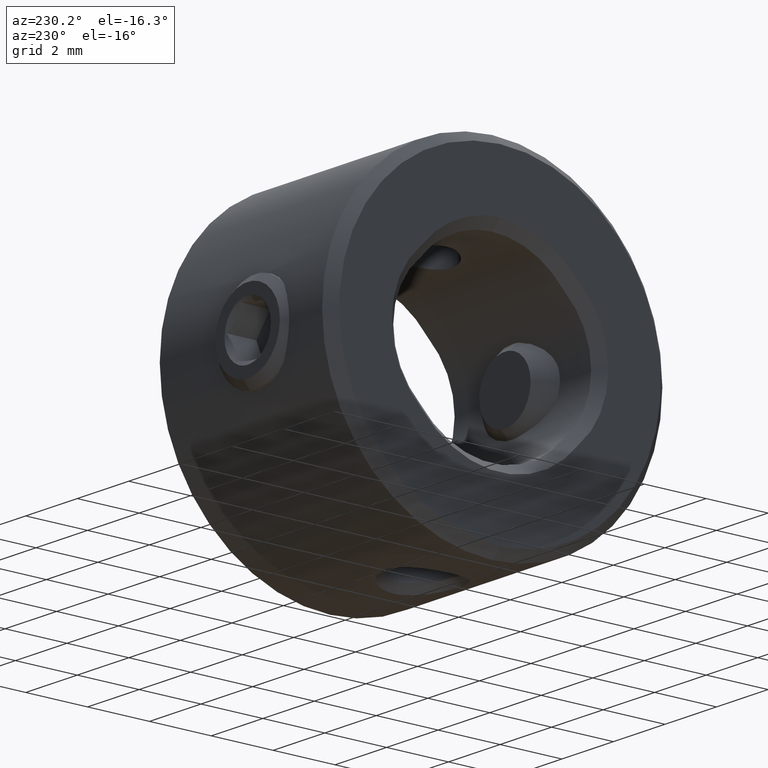
[diagram: clean part render]
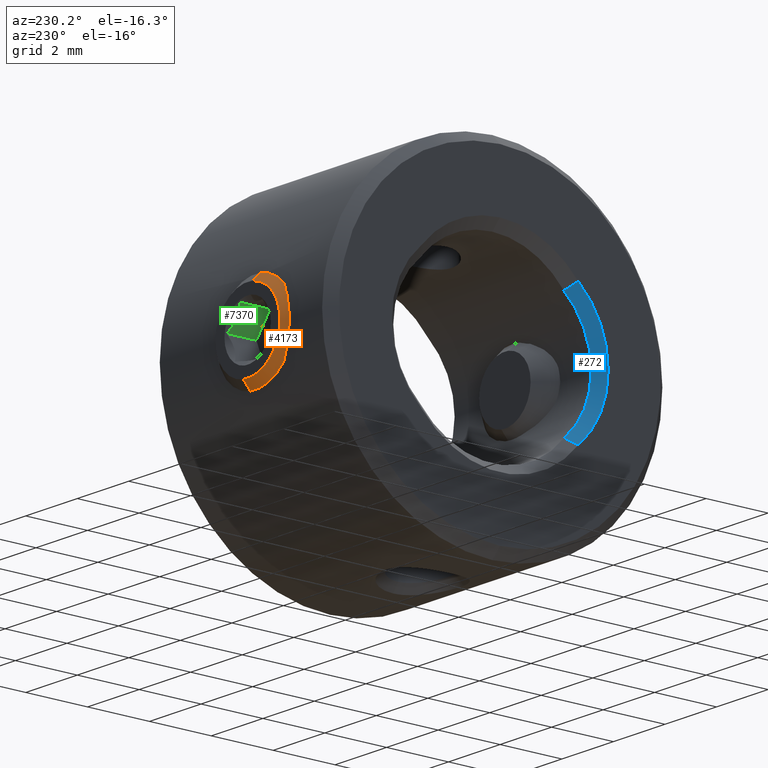
[diagram: same view with three faces highlighted in distinct colors, each labeled with its STEP entity id]
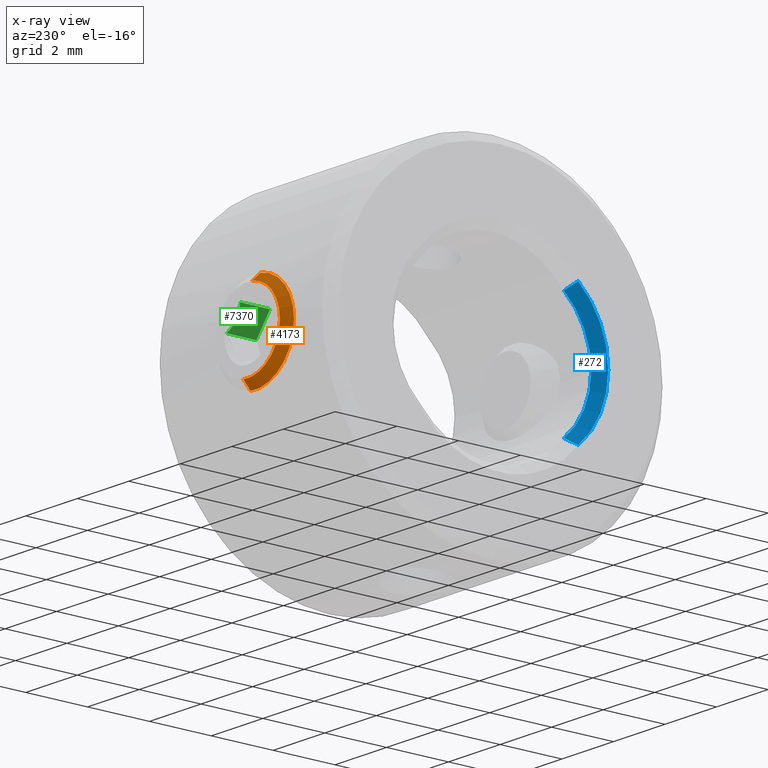
[diagram: x-ray of the same camera — body ghosted, the three highlighted faces saturated]
A machine part, auxiliary view with three faces highlighted in distinct colors.
The next image is the same camera in x-ray (body ghosted, the three faces saturated) — at least one of them is partly hidden behind the body in this view.
Their STEP definitions:

[orange] entity #4173 — the highlighted conical surface has half-angle 45 deg.
#32 = CARTESIAN_POINT ( 'NONE',  ( 2.802927664577335776, 5.407278291523189395, 1.486997812577814271 ) ) ;
#144 = DIRECTION ( 'NONE',  ( -0.1313815569484383383, 0.000000000000000000, 0.9913318750518437250 ) ) ;
#166 = AXIS2_PLACEMENT_3D ( 'NONE', #7717, #7025, #144 ) ;
#698 = EDGE_CURVE ( 'NONE', #4863, #7334, #1513, .T. ) ;
#1513 = LINE ( 'NONE', #5260, #4674 ) ;
#1697 = CARTESIAN_POINT ( 'NONE',  ( 2.999999999999999556, 5.657278291523188507, -1.490777987167568597E-16 ) ) ;
#1835 = CARTESIAN_POINT ( 'NONE',  ( 3.164226946185553224, 5.657278291523188507, -1.239164843814845929 ) ) ;
#2280 = VECTOR ( 'NONE', #5171, 999.9999999999998863 ) ;
#2322 = DIRECTION ( 'NONE',  ( -0.1313815569484384216, 0.000000000000000000, 0.9913318750518436140 ) ) ;
#2472 = CARTESIAN_POINT ( 'NONE',  ( 3.197072335422663780, 5.407278291523189395, -1.486997812577814493 ) ) ;
#2725 = EDGE_CURVE ( 'NONE', #5819, #4863, #4830, .T. ) ;
#3081 = ORIENTED_EDGE ( 'NONE', *, *, #4033, .F. ) ;
#3340 = FACE_OUTER_BOUND ( 'NONE', #6691, .T. ) ;
#3732 = ORIENTED_EDGE ( 'NONE', *, *, #698, .F. ) ;
#3833 = VERTEX_POINT ( 'NONE', #2472 ) ;
#3847 = AXIS2_PLACEMENT_3D ( 'NONE', #1697, #4862, #2322 ) ;
#4033 = EDGE_CURVE ( 'NONE', #7334, #3833, #7615, .T. ) ;
#4172 = DIRECTION ( 'NONE',  ( -0.09290078984108889049, -0.7071067811865355823, 0.7009774912555457593 ) ) ;
#4173 = ADVANCED_FACE ( 'NONE', ( #3340 ), #6836, .T. ) ;
#4306 = EDGE_CURVE ( 'NONE', #5819, #3833, #7344, .T. ) ;
#4674 = VECTOR ( 'NONE', #4172, 999.9999999999998863 ) ;
#4830 = CIRCLE ( 'NONE', #3847, 1.250000000000041522 ) ;
#4862 = DIRECTION ( 'NONE',  ( 0.000000000000000000, 1.000000000000000000, 0.000000000000000000 ) ) ;
#4863 = VERTEX_POINT ( 'NONE', #7426 ) ;
#5171 = DIRECTION ( 'NONE',  ( 0.09290078984108895988, -0.7071067811865355823, -0.7009774912555457593 ) ) ;
#5260 = CARTESIAN_POINT ( 'NONE',  ( 2.835773053814446332, 5.657278291523188507, 1.239164843814845485 ) ) ;
#5279 = CARTESIAN_POINT ( 'NONE',  ( 2.999999999999999556, 5.657278291523188507, -1.490777987167568597E-16 ) ) ;
#5379 = DIRECTION ( 'NONE',  ( 0.1313815569484384216, 0.000000000000000000, -0.9913318750518436140 ) ) ;
#5424 = AXIS2_PLACEMENT_3D ( 'NONE', #5279, #7196, #5379 ) ;
#5548 = ORIENTED_EDGE ( 'NONE', *, *, #2725, .F. ) ;
#5819 = VERTEX_POINT ( 'NONE', #1835 ) ;
#6691 = EDGE_LOOP ( 'NONE', ( #3732, #5548, #7514, #3081 ) ) ;
#6836 = CONICAL_SURFACE ( 'NONE', #5424, 1.250000000000041522, 0.7853981633974488341 ) ;
#7025 = DIRECTION ( 'NONE',  ( -0.000000000000000000, -1.000000000000000000, -0.000000000000000000 ) ) ;
#7032 = CARTESIAN_POINT ( 'NONE',  ( 3.164226946185553224, 5.657278291523188507, -1.239164843814845929 ) ) ;
#7196 = DIRECTION ( 'NONE',  ( 0.000000000000000000, -1.000000000000000000, 0.000000000000000000 ) ) ;
#7334 = VERTEX_POINT ( 'NONE', #32 ) ;
#7344 = LINE ( 'NONE', #7032, #2280 ) ;
#7426 = CARTESIAN_POINT ( 'NONE',  ( 2.835773053814446332, 5.657278291523188507, 1.239164843814845485 ) ) ;
#7514 = ORIENTED_EDGE ( 'NONE', *, *, #4306, .T. ) ;
#7615 = CIRCLE ( 'NONE', #166, 1.500000000000049516 ) ;
#7717 = CARTESIAN_POINT ( 'NONE',  ( 2.999999999999999556, 5.407278291523189395, -1.490777987167568597E-16 ) ) ;

[blue] entity #272 — the highlighted conical surface has half-angle 45 deg.
#272 = ADVANCED_FACE ( 'NONE', ( #1221 ), #831, .F. ) ;
#476 = DIRECTION ( 'NONE',  ( -1.000000000000000000, -0.000000000000000000, -0.000000000000000000 ) ) ;
#550 = DIRECTION ( 'NONE',  ( 0.000000000000000000, 0.000000000000000000, 1.000000000000000000 ) ) ;
#593 = CARTESIAN_POINT ( 'NONE',  ( 0.2000200385915510415, -2.385699972434612626, -1.979492868262897609 ) ) ;
#742 = CARTESIAN_POINT ( 'NONE',  ( 0.1000180362600433664, -2.457129974099970138, 2.049990790637023164 ) ) ;
#831 = CONICAL_SURFACE ( 'NONE', #6978, 2.800000000000005596, 0.7853981633974490562 ) ;
#914 = CARTESIAN_POINT ( 'NONE',  ( 0.3000000000000051514, -2.314285714285716722, -1.908947781541719735 ) ) ;
#1099 = CARTESIAN_POINT ( 'NONE',  ( 0.000000000000000000, -2.528571428571431134, -2.120454321746231052 ) ) ;
#1104 = CARTESIAN_POINT ( 'NONE',  ( 0.000000000000000000, -0.6999999999999998446, 0.000000000000000000 ) ) ;
#1153 = DIRECTION ( 'NONE',  ( 1.000000000000000000, 0.000000000000000000, 0.000000000000000000 ) ) ;
#1180 = CARTESIAN_POINT ( 'NONE',  ( 0.3000000000000051514, -0.6999999999999998446, 0.000000000000000000 ) ) ;
#1221 = FACE_OUTER_BOUND ( 'NONE', #8094, .T. ) ;
#1286 = CARTESIAN_POINT ( 'NONE',  ( 0.3000000000000051514, -2.314285714285716722, 1.908947781541719735 ) ) ;
#2017 = CIRCLE ( 'NONE', #6082, 2.500000000000000000 ) ;
#2158 = ORIENTED_EDGE ( 'NONE', *, *, #7117, .F. ) ;
#2171 = VERTEX_POINT ( 'NONE', #914 ) ;
#2368 = VERTEX_POINT ( 'NONE', #1286 ) ;
#2456 = CARTESIAN_POINT ( 'NONE',  ( 0.1000180362600433803, -2.457129974099971470, -2.049990790637020943 ) ) ;
#2598 = B_SPLINE_CURVE_WITH_KNOTS ( 'NONE', 3,
 ( #6415, #3851, #742, #6663 ),
 .UNSPECIFIED., .F., .F.,
 ( 4, 4 ),
 ( 0.000000000000000000, 0.0004250333915073314451 ),
 .UNSPECIFIED. ) ;
#2638 = VERTEX_POINT ( 'NONE', #6281 ) ;
#2677 = B_SPLINE_CURVE_WITH_KNOTS ( 'NONE', 3,
 ( #7433, #593, #2456, #1099 ),
 .UNSPECIFIED., .F., .F.,
 ( 4, 4 ),
 ( 0.000000000000000000, 0.0004250333915073315535 ),
 .UNSPECIFIED. ) ;
#2875 = AXIS2_PLACEMENT_3D ( 'NONE', #1104, #1153, #6853 ) ;
#3033 = ORIENTED_EDGE ( 'NONE', *, *, #7924, .T. ) ;
#3709 = CARTESIAN_POINT ( 'NONE',  ( 0.000000000000000000, -0.6999999999999998446, 0.000000000000000000 ) ) ;
#3851 = CARTESIAN_POINT ( 'NONE',  ( 0.2000200385915509860, -2.385699972434611293, 1.979492868262899385 ) ) ;
#4045 = ORIENTED_EDGE ( 'NONE', *, *, #5989, .F. ) ;
#4090 = EDGE_CURVE ( 'NONE', #2368, #4426, #2598, .T. ) ;
#4426 = VERTEX_POINT ( 'NONE', #4653 ) ;
#4644 = ORIENTED_EDGE ( 'NONE', *, *, #4090, .F. ) ;
#4653 = CARTESIAN_POINT ( 'NONE',  ( 0.000000000000000000, -2.528571428571428914, 2.120454321746232829 ) ) ;
#5989 = EDGE_CURVE ( 'NONE', #4426, #2638, #6807, .T. ) ;
#6082 = AXIS2_PLACEMENT_3D ( 'NONE', #1180, #476, #6118 ) ;
#6118 = DIRECTION ( 'NONE',  ( 0.000000000000000000, 0.000000000000000000, -1.000000000000000000 ) ) ;
#6281 = CARTESIAN_POINT ( 'NONE',  ( 0.000000000000000000, -2.528571428571431134, -2.120454321746231052 ) ) ;
#6415 = CARTESIAN_POINT ( 'NONE',  ( 0.3000000000000051514, -2.314285714285716722, 1.908947781541719735 ) ) ;
#6663 = CARTESIAN_POINT ( 'NONE',  ( 0.000000000000000000, -2.528571428571428914, 2.120454321746232829 ) ) ;
#6807 = CIRCLE ( 'NONE', #2875, 2.800000000000006040 ) ;
#6853 = DIRECTION ( 'NONE',  ( 0.000000000000000000, 0.000000000000000000, -1.000000000000000000 ) ) ;
#6978 = AXIS2_PLACEMENT_3D ( 'NONE', #3709, #8112, #550 ) ;
#7117 = EDGE_CURVE ( 'NONE', #2171, #2368, #2017, .T. ) ;
#7433 = CARTESIAN_POINT ( 'NONE',  ( 0.3000000000000051514, -2.314285714285716722, -1.908947781541719735 ) ) ;
#7924 = EDGE_CURVE ( 'NONE', #2171, #2638, #2677, .T. ) ;
#8094 = EDGE_LOOP ( 'NONE', ( #3033, #4045, #4644, #2158 ) ) ;
#8112 = DIRECTION ( 'NONE',  ( -1.000000000000000000, -0.000000000000000000, -0.000000000000000000 ) ) ;

[green] entity #7370 — the highlighted planar face has unit normal (0.7928, 0, 0.6094).
#343 = CARTESIAN_POINT ( 'NONE',  ( 3.501755022421820129, 5.524242026031845221, 0.5778934250983298604 ) ) ;
#495 = VERTEX_POINT ( 'NONE', #2003 ) ;
#509 = EDGE_CURVE ( 'NONE', #891, #6136, #2657, .T. ) ;
#788 = CARTESIAN_POINT ( 'NONE',  ( 3.858518587376177589, 4.657278291523188507, 0.1137797659061002414 ) ) ;
#850 = CARTESIAN_POINT ( 'NONE',  ( 3.858518587376177589, 5.624469405329217686, 0.1137797659061002414 ) ) ;
#876 = CARTESIAN_POINT ( 'NONE',  ( 3.330723125976761789, 4.657278291523188507, 0.8003887892419613292 ) ) ;
#891 = VERTEX_POINT ( 'NONE', #5546 ) ;
#957 = LINE ( 'NONE', #2379, #5786 ) ;
#979 = EDGE_CURVE ( 'NONE', #495, #1760, #957, .T. ) ;
#992 = ORIENTED_EDGE ( 'NONE', *, *, #509, .T. ) ;
#1231 = DIRECTION ( 'NONE',  ( 0.000000000000000000, 1.000000000000000000, 0.000000000000000000 ) ) ;
#1431 = VECTOR ( 'NONE', #3486, 1000.000000000000000 ) ;
#1519 = CARTESIAN_POINT ( 'NONE',  ( 3.414415687857291104, 5.563851771805030211, 0.6915131501432423278 ) ) ;
#1676 = AXIS2_PLACEMENT_3D ( 'NONE', #876, #2178, #2732 ) ;
#1760 = VERTEX_POINT ( 'NONE', #788 ) ;
#2003 = CARTESIAN_POINT ( 'NONE',  ( 3.330723125976761789, 4.657278291523188507, 0.8003887892419613292 ) ) ;
#2023 = LINE ( 'NONE', #3566, #1431 ) ;
#2165 = ORIENTED_EDGE ( 'NONE', *, *, #2196, .F. ) ;
#2178 = DIRECTION ( 'NONE',  ( 0.7928278089019392683, 0.000000000000000000, 0.6094457034320204247 ) ) ;
#2196 = EDGE_CURVE ( 'NONE', #1760, #6136, #5319, .T. ) ;
#2379 = CARTESIAN_POINT ( 'NONE',  ( 3.330723125976761789, 4.657278291523188507, 0.8003887892419613292 ) ) ;
#2657 = B_SPLINE_CURVE_WITH_KNOTS ( 'NONE', 3,
 ( #3418, #2806, #1519, #343, #3485, #6619, #7255, #850 ),
 .UNSPECIFIED., .F., .F.,
 ( 4, 2, 2, 4 ),
 ( 2.526584614080275925E-07, 0.0002232698208926597893, 0.0004462869833239115568, 0.0008923213081864141702 ),
 .UNSPECIFIED. ) ;
#2732 = DIRECTION ( 'NONE',  ( 0.6094457034320203137, 0.000000000000000000, -0.7928278089019391572 ) ) ;
#2806 = CARTESIAN_POINT ( 'NONE',  ( 3.372135303538371875, 5.591659858238871905, 0.7465156947018987132 ) ) ;
#3418 = CARTESIAN_POINT ( 'NONE',  ( 3.330723125976761789, 5.624469405329217686, 0.8003887892419613292 ) ) ;
#3485 = CARTESIAN_POINT ( 'NONE',  ( 3.547587924114164792, 5.512584923951857618, 0.5182694113105072997 ) ) ;
#3486 = DIRECTION ( 'NONE',  ( 0.000000000000000000, 1.000000000000000000, 0.000000000000000000 ) ) ;
#3566 = CARTESIAN_POINT ( 'NONE',  ( 3.330723125976761789, 4.657278291523188507, 0.8003887892419613292 ) ) ;
#4848 = ORIENTED_EDGE ( 'NONE', *, *, #979, .F. ) ;
#5135 = EDGE_LOOP ( 'NONE', ( #7105, #992, #2165, #4848 ) ) ;
#5287 = FACE_OUTER_BOUND ( 'NONE', #5135, .T. ) ;
#5319 = LINE ( 'NONE', #7018, #7899 ) ;
#5546 = CARTESIAN_POINT ( 'NONE',  ( 3.330723125976761789, 5.624469405329217686, 0.8003887892419613292 ) ) ;
#5786 = VECTOR ( 'NONE', #6817, 1000.000000000000114 ) ;
#6136 = VERTEX_POINT ( 'NONE', #6977 ) ;
#6619 = CARTESIAN_POINT ( 'NONE',  ( 3.685712340119894570, 5.512110189492704038, 0.3385833827094421045 ) ) ;
#6724 = EDGE_CURVE ( 'NONE', #495, #891, #2023, .T. ) ;
#6817 = DIRECTION ( 'NONE',  ( 0.6094457034320210909, 0.000000000000000000, -0.7928278089019387131 ) ) ;
#6977 = CARTESIAN_POINT ( 'NONE',  ( 3.858518587376177589, 5.624469405329217686, 0.1137797659061002414 ) ) ;
#7018 = CARTESIAN_POINT ( 'NONE',  ( 3.858518587376177589, 4.657278291523188507, 0.1137797659061002414 ) ) ;
#7105 = ORIENTED_EDGE ( 'NONE', *, *, #6724, .T. ) ;
#7250 = PLANE ( 'NONE',  #1676 ) ;
#7255 = CARTESIAN_POINT ( 'NONE',  ( 3.775204452977830361, 5.558462274653835244, 0.2221631087595124510 ) ) ;
#7370 = ADVANCED_FACE ( 'NONE', ( #5287 ), #7250, .F. ) ;
#7899 = VECTOR ( 'NONE', #1231, 1000.000000000000000 ) ;